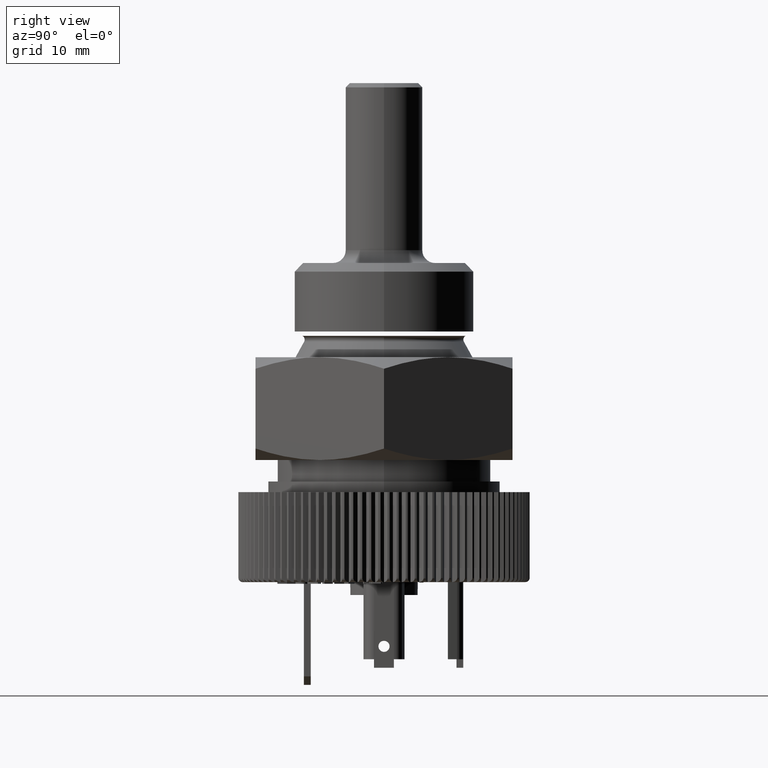
[diagram: clean part render]
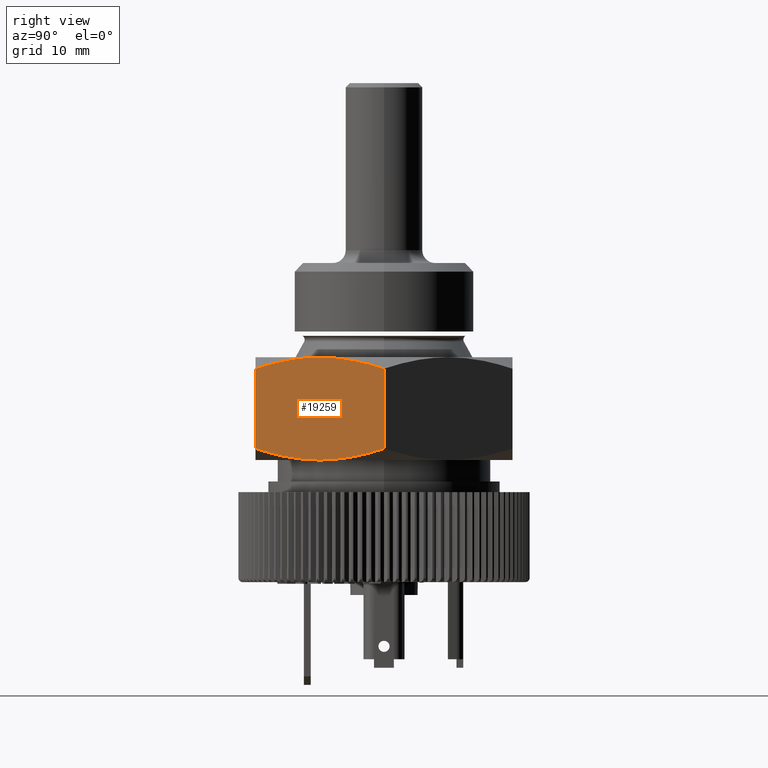
[diagram: same view with one face highlighted and labeled with its STEP entity id]
A machine part, right view. The second image highlights one B-rep face of the part: STEP entity #19259.
In plain terms, the highlighted planar face has unit normal (0.866, -0.5, 0).
Its self-contained STEP definition (entity closure, byte-faithful):
#311 = ORIENTED_EDGE ( 'NONE', *, *, #33352, .F. ) ;
#420 = VECTOR ( 'NONE', #436, 1000.000000000000000 ) ;
#436 = DIRECTION ( 'NONE',  ( 0.0000000000000000000, 0.0000000000000000000, 1.000000000000000000 ) ) ;
#822 = EDGE_LOOP ( 'NONE', ( #19425, #32146, #15250, #311, #16743, #32036 ) ) ;
#851 = B_SPLINE_CURVE_WITH_KNOTS ( 'NONE', 3,
 ( #16597, #11048, #14000, #19011, #32603, #27451, #21817, #8753 ),
 .UNSPECIFIED., .F., .F.,
 ( 4, 2, 2, 4 ),
 ( 0.008762996616073657694, 0.01094549440787754603, 0.01312799219968143263, 0.01749298778328920584 ),
 .UNSPECIFIED. ) ;
#1369 = EDGE_CURVE ( 'NONE', #26374, #11933, #25807, .T. ) ;
#3044 = LINE ( 'NONE', #13637, #420 ) ;
#3476 = DIRECTION ( 'NONE',  ( 0.4999999999999998890, 0.8660254037844385966, 0.0000000000000000000 ) ) ;
#3888 = CARTESIAN_POINT ( 'NONE',  ( 13.72699645679778691, -6.224144701508286026, -11.96833344980958103 ) ) ;
#3983 = DIRECTION ( 'NONE',  ( 0.8660254037844387076, -0.4999999999999999445, 0.0000000000000000000 ) ) ;
#4535 = EDGE_CURVE ( 'NONE', #11933, #29668, #25869, .T. ) ;
#4598 = CARTESIAN_POINT ( 'NONE',  ( 12.99038105676657828, -7.499999999999997335, -12.00000000000000178 ) ) ;
#6413 = CARTESIAN_POINT ( 'NONE',  ( 8.660254037844392627, -14.99999999999999289, -10.66025403784440684 ) ) ;
#6487 = CARTESIAN_POINT ( 'NONE',  ( 16.61392498976816867, -1.223837804583293387, -11.06819997270561728 ) ) ;
#6821 = CARTESIAN_POINT ( 'NONE',  ( 14.45721671389627616, -4.959366115497686245, -11.84578735108513570 ) ) ;
#7888 = CARTESIAN_POINT ( 'NONE',  ( 17.32050807568877460, -3.380393913260085011E-15, -1.339745962155604042 ) ) ;
#8139 = AXIS2_PLACEMENT_3D ( 'NONE', #22069, #3983, #3476 ) ;
#8341 = DIRECTION ( 'NONE',  ( 0.0000000000000000000, 0.0000000000000000000, 1.000000000000000000 ) ) ;
#8428 = CARTESIAN_POINT ( 'NONE',  ( 17.32050807568877460, -3.380393913260085011E-15, -1.339745962155604042 ) ) ;
#8753 = CARTESIAN_POINT ( 'NONE',  ( 8.660254037844392627, -14.99999999999999289, -1.339745962155602932 ) ) ;
#9110 = EDGE_CURVE ( 'NONE', #29668, #18566, #3044, .T. ) ;
#10537 = CARTESIAN_POINT ( 'NONE',  ( 13.72810618242296954, -6.222222600343005006, 1.219727444046192488E-16 ) ) ;
#11048 = CARTESIAN_POINT ( 'NONE',  ( 12.62289781509838349, -8.136499645499435829, 2.477571370718828492E-16 ) ) ;
#11508 = EDGE_CURVE ( 'NONE', #18566, #18626, #15676, .T. ) ;
#11933 = VERTEX_POINT ( 'NONE', #15164 ) ;
#12371 = CARTESIAN_POINT ( 'NONE',  ( 8.660254037844392627, -14.99999999999999289, -1.339745962155602932 ) ) ;
#13127 = CARTESIAN_POINT ( 'NONE',  ( 16.61215595149308299, -1.226901868756284486, -0.9307786725699396246 ) ) ;
#13352 = EDGE_CURVE ( 'NONE', #18626, #30580, #851, .T. ) ;
#13476 = CARTESIAN_POINT ( 'NONE',  ( 15.89862980871758680, -2.462765400572092034, -0.5938504749946962313 ) ) ;
#13637 = CARTESIAN_POINT ( 'NONE',  ( 17.32050807568877460, -3.467220923852814603E-15, -21.00000000000000000 ) ) ;
#14000 = CARTESIAN_POINT ( 'NONE',  ( 12.25376565673538032, -8.775855298491713086, -0.03166655019042648178 ) ) ;
#14141 = CARTESIAN_POINT ( 'NONE',  ( 17.32050807568877460, -3.518396117943697230E-15, -10.66025403784440506 ) ) ;
#15164 = CARTESIAN_POINT ( 'NONE',  ( 12.99038105676657828, -7.499999999999997335, -12.00000000000000178 ) ) ;
#15250 = ORIENTED_EDGE ( 'NONE', *, *, #13352, .T. ) ;
#15676 = B_SPLINE_CURVE_WITH_KNOTS ( 'NONE', 3,
 ( #8428, #13127, #13476, #23763, #10537, #24111 ),
 .UNSPECIFIED., .F., .F.,
 ( 4, 2, 4 ),
 ( 2.380728851880197912E-07, 0.004381617344479423262, 0.008762996616073657694 ),
 .UNSPECIFIED. ) ;
#16597 = CARTESIAN_POINT ( 'NONE',  ( 12.99038105676658539, -7.500000000000001776, -6.938893903907228378E-15 ) ) ;
#16738 = CARTESIAN_POINT ( 'NONE',  ( 12.99038105676657828, -7.499999999999997335, -12.00000000000000178 ) ) ;
#16743 = ORIENTED_EDGE ( 'NONE', *, *, #1369, .T. ) ;
#17769 = CARTESIAN_POINT ( 'NONE',  ( 10.08213230481558753, -12.53723459942790619, -11.40614952500531487 ) ) ;
#17949 = CARTESIAN_POINT ( 'NONE',  ( 12.25265593111019946, -8.777777399656995883, -12.00000000000001066 ) ) ;
#18566 = VERTEX_POINT ( 'NONE', #7888 ) ;
#18626 = VERTEX_POINT ( 'NONE', #22148 ) ;
#19011 = CARTESIAN_POINT ( 'NONE',  ( 11.52354539963688929, -10.04063388450231287, -0.1542126489148711033 ) ) ;
#19259 = ADVANCED_FACE ( 'NONE', ( #24698 ), #22231, .T. ) ;
#19425 = ORIENTED_EDGE ( 'NONE', *, *, #9110, .T. ) ;
#19661 = CARTESIAN_POINT ( 'NONE',  ( 14.81988455483894818, -4.331206988713675266, -11.75502564263295113 ) ) ;
#21817 = CARTESIAN_POINT ( 'NONE',  ( 9.366837123764991446, -13.77616219541670262, -0.9318000272943878226 ) ) ;
#22069 = CARTESIAN_POINT ( 'NONE',  ( 8.660254037844392627, -14.99999999999999289, -21.00000000000000000 ) ) ;
#22148 = CARTESIAN_POINT ( 'NONE',  ( 12.99038105676658539, -7.500000000000001776, -6.938893903907228378E-15 ) ) ;
#22231 = PLANE ( 'NONE',  #8139 ) ;
#23197 = CARTESIAN_POINT ( 'NONE',  ( 8.660254037844392627, -14.99999999999999289, -10.66025403784440684 ) ) ;
#23763 = CARTESIAN_POINT ( 'NONE',  ( 14.45666067663407084, -4.960329200286733631, -0.1276848840588058753 ) ) ;
#24111 = CARTESIAN_POINT ( 'NONE',  ( 12.99038105676658539, -7.500000000000001776, -6.938893903907228378E-15 ) ) ;
#24698 = FACE_OUTER_BOUND ( 'NONE', #822, .T. ) ;
#25417 = VECTOR ( 'NONE', #8341, 1000.000000000000000 ) ;
#25807 = B_SPLINE_CURVE_WITH_KNOTS ( 'NONE', 3,
 ( #23197, #33806, #17769, #28451, #17949, #4598 ),
 .UNSPECIFIED., .F., .F.,
 ( 4, 2, 4 ),
 ( 2.380728851880666427E-07, 0.004381617344479419793, 0.008762996616073652489 ),
 .UNSPECIFIED. ) ;
#25869 = B_SPLINE_CURVE_WITH_KNOTS ( 'NONE', 3,
 ( #16738, #30666, #3888, #6821, #19661, #30331, #6487, #14141 ),
 .UNSPECIFIED., .F., .F.,
 ( 4, 2, 2, 4 ),
 ( 0.008762996616073652489, 0.01094549440787753909, 0.01312799219968142569, 0.01749298778328920237 ),
 .UNSPECIFIED. ) ;
#26374 = VERTEX_POINT ( 'NONE', #6413 ) ;
#27197 = CARTESIAN_POINT ( 'NONE',  ( 8.660254037844392627, -14.99999999999999289, -21.00000000000000000 ) ) ;
#27451 = CARTESIAN_POINT ( 'NONE',  ( 10.07931531348311616, -12.54211377154022422, -0.5950327307380368635 ) ) ;
#28451 = CARTESIAN_POINT ( 'NONE',  ( 11.52410143689909461, -10.03967079971326726, -11.87231511594120015 ) ) ;
#29668 = VERTEX_POINT ( 'NONE', #32568 ) ;
#30331 = CARTESIAN_POINT ( 'NONE',  ( 15.90144680005004929, -2.457886228459781552, -11.40496726926197013 ) ) ;
#30580 = VERTEX_POINT ( 'NONE', #12371 ) ;
#30666 = CARTESIAN_POINT ( 'NONE',  ( 13.35786429843478373, -6.863500354500567724, -12.00000000000000888 ) ) ;
#32036 = ORIENTED_EDGE ( 'NONE', *, *, #4535, .T. ) ;
#32146 = ORIENTED_EDGE ( 'NONE', *, *, #11508, .T. ) ;
#32196 = LINE ( 'NONE', #27197, #25417 ) ;
#32568 = CARTESIAN_POINT ( 'NONE',  ( 17.32050807568877460, -3.518396117943697230E-15, -10.66025403784440506 ) ) ;
#32603 = CARTESIAN_POINT ( 'NONE',  ( 11.16087755869421727, -10.66879301128632562, -0.2449743573670565833 ) ) ;
#33352 = EDGE_CURVE ( 'NONE', #26374, #30580, #32196, .T. ) ;
#33806 = CARTESIAN_POINT ( 'NONE',  ( 9.368606162040082452, -13.77309813124371551, -11.06922132743006593 ) ) ;